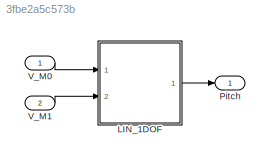
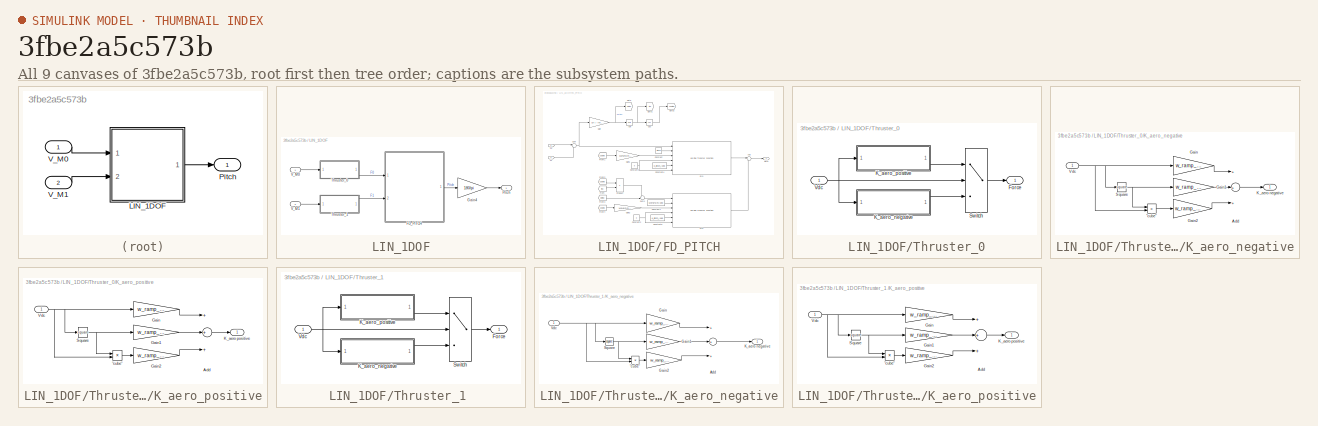
[diagram: thumbnail index - all 9 canvases of the model, root first then tree order]
MODEL slx_3fbe2a5c573b
KIND model
CONFIG AbsTol = auto
CONFIG EnableMultiTasking = off
CONFIG FixedStep = auto
CONFIG InitFcn = load("parameters.mat")\nload("Coefficients.mat") 
CONFIG MaxStep = auto
CONFIG MinStep = auto
CONFIG RelTol = 1e-3
CONFIG SampleTimeConstraint = Unconstrained
CONFIG Solver = VariableStepAuto
CONFIG SolverName = VariableStepAuto
CONFIG StartTime = 0.0
CONFIG StopTime = 600
BLOCK [SubSystem] LIN_1DOF
  Ports = [2, 1]
  RequestExecContextInheritance = off
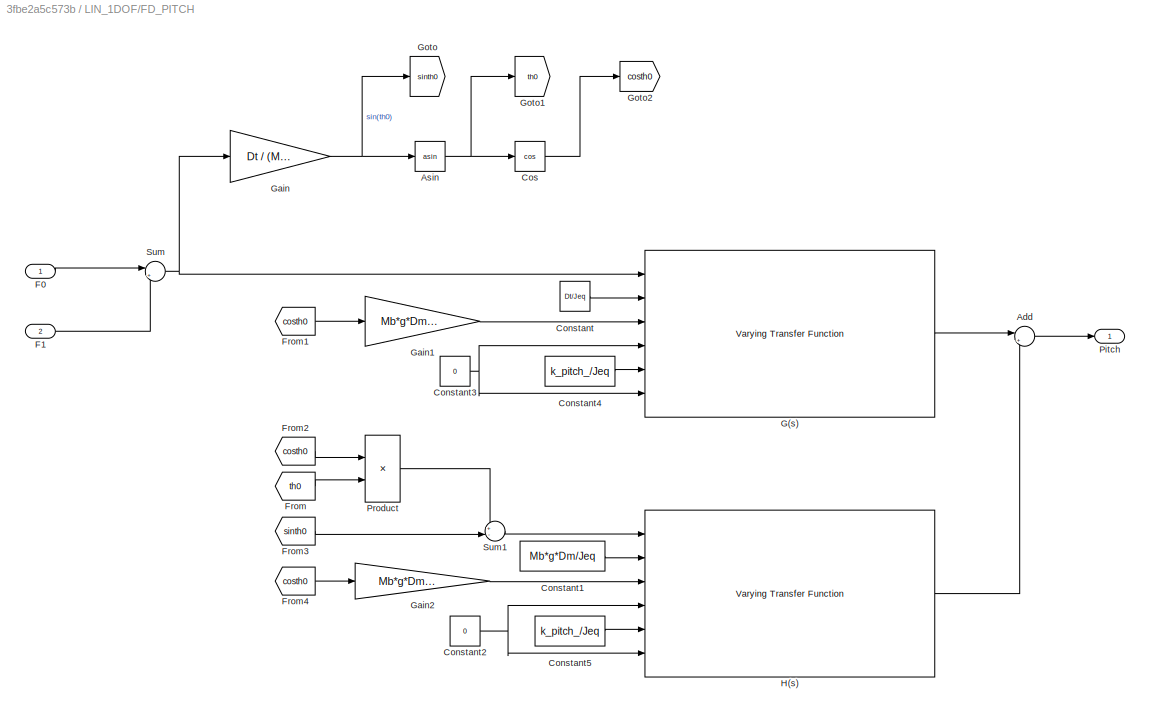
BLOCK [SubSystem] LIN_1DOF/FD_PITCH
  Ports = [2, 1]
  RequestExecContextInheritance = off
BLOCK [Sum] LIN_1DOF/FD_PITCH/Add
  IconShape = round
  InputSameDT = off
  Inputs = |++
  OutDataTypeStr = Inherit: Inherit via internal rule
  Ports = [2, 1]
  SaturateOnIntegerOverflow = off
BLOCK [Trigonometry] LIN_1DOF/FD_PITCH/Asin
  Operator = asin
  Ports = [1, 1]
BLOCK [Constant] LIN_1DOF/FD_PITCH/Constant
  Value = Dt/Jeq
BLOCK [Constant] LIN_1DOF/FD_PITCH/Constant1
  Value = Mb*g*Dm/Jeq
BLOCK [Constant] LIN_1DOF/FD_PITCH/Constant2
  Value = 0
BLOCK [Constant] LIN_1DOF/FD_PITCH/Constant3
  Value = 0
BLOCK [Constant] LIN_1DOF/FD_PITCH/Constant4
  Value = k_pitch_/Jeq
BLOCK [Constant] LIN_1DOF/FD_PITCH/Constant5
  Value = k_pitch_/Jeq
BLOCK [Trigonometry] LIN_1DOF/FD_PITCH/Cos
  Operator = cos
  Ports = [1, 1]
BLOCK [Inport] LIN_1DOF/FD_PITCH/F0
  IconDisplay = Port number
BLOCK [Inport] LIN_1DOF/FD_PITCH/F1
  IconDisplay = Port number
  Port = 2
BLOCK [From] LIN_1DOF/FD_PITCH/From
  GotoTag = th0
BLOCK [From] LIN_1DOF/FD_PITCH/From1
  GotoTag = costh0
BLOCK [From] LIN_1DOF/FD_PITCH/From2
  GotoTag = costh0
BLOCK [From] LIN_1DOF/FD_PITCH/From3
  GotoTag = sinth0
BLOCK [From] LIN_1DOF/FD_PITCH/From4
  GotoTag = costh0
BLOCK [Reference] LIN_1DOF/FD_PITCH/G(s)  REF=cstblocks/Linear Parameter Varying/Varying Transfer Function
  Ports = [6, 1]
  SourceBlock = cstblocks/Linear Parameter Varying/Varying Transfer Function
  SourceProductBaseCode = CT
  SourceProductName = Control System Toolbox
  SourceType = Varying Transfer Function
BLOCK [Gain] LIN_1DOF/FD_PITCH/Gain
  Gain = Dt / (Mb*g*Dm)
  OutDataTypeStr = Inherit: Inherit via internal rule
  ParamDataTypeStr = Inherit: Inherit via internal rule
  SaturateOnIntegerOverflow = off
BLOCK [Gain] LIN_1DOF/FD_PITCH/Gain1
  Gain = Mb*g*Dm/Jeq
  OutDataTypeStr = Inherit: Inherit via internal rule
  ParamDataTypeStr = Inherit: Inherit via internal rule
  SaturateOnIntegerOverflow = off
BLOCK [Gain] LIN_1DOF/FD_PITCH/Gain2
  Gain = Mb*g*Dm/Jp
  OutDataTypeStr = Inherit: Inherit via internal rule
  ParamDataTypeStr = Inherit: Inherit via internal rule
  SaturateOnIntegerOverflow = off
BLOCK [Goto] LIN_1DOF/FD_PITCH/Goto
  GotoTag = sinth0
BLOCK [Goto] LIN_1DOF/FD_PITCH/Goto1
  GotoTag = th0
BLOCK [Goto] LIN_1DOF/FD_PITCH/Goto2
  GotoTag = costh0
BLOCK [Reference] LIN_1DOF/FD_PITCH/H(s)  REF=cstblocks/Linear Parameter Varying/Varying Transfer Function
  Ports = [6, 1]
  SourceBlock = cstblocks/Linear Parameter Varying/Varying Transfer Function
  SourceProductBaseCode = CT
  SourceProductName = Control System Toolbox
  SourceType = Varying Transfer Function
BLOCK [Outport] LIN_1DOF/FD_PITCH/Pitch
  IconDisplay = Port number
BLOCK [Product] LIN_1DOF/FD_PITCH/Product
  InputSameDT = off
  OutDataTypeStr = Inherit: Inherit via internal rule
  Ports = [2, 1]
  RndMeth = Floor
  SaturateOnIntegerOverflow = off
BLOCK [Sum] LIN_1DOF/FD_PITCH/Sum
  IconShape = round
  InputSameDT = off
  Inputs = |+-
  OutDataTypeStr = Inherit: Inherit via internal rule
  Ports = [2, 1]
  SaturateOnIntegerOverflow = off
BLOCK [Sum] LIN_1DOF/FD_PITCH/Sum1
  IconShape = round
  InputSameDT = off
  Inputs = +-|
  OutDataTypeStr = Inherit: Inherit via internal rule
  Ports = [2, 1]
  SaturateOnIntegerOverflow = off
BLOCK [Gain] LIN_1DOF/Gain4
  Gain = 180/pi
  OutDataTypeStr = Inherit: Inherit via internal rule
  ParamDataTypeStr = Inherit: Inherit via internal rule
  SaturateOnIntegerOverflow = off
BLOCK [Outport] LIN_1DOF/Pitch
  IconDisplay = Port number
BLOCK [SubSystem] LIN_1DOF/Thruster_0
  Ports = [1, 1]
  RequestExecContextInheritance = off
BLOCK [Outport] LIN_1DOF/Thruster_0/Force
  IconDisplay = Port number
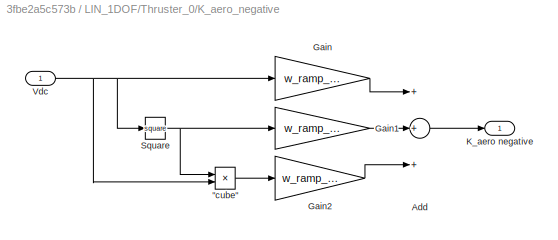
BLOCK [SubSystem] LIN_1DOF/Thruster_0/K_aero_negative
  Ports = [1, 1]
  RequestExecContextInheritance = off
BLOCK [Product] LIN_1DOF/Thruster_0/K_aero_negative/"cube"
  InputSameDT = off
  Inputs = **
  OutDataTypeStr = Inherit: Inherit via internal rule
  Ports = [2, 1]
  RndMeth = Floor
  SaturateOnIntegerOverflow = off
BLOCK [Sum] LIN_1DOF/Thruster_0/K_aero_negative/Add
  InputSameDT = off
  Inputs = +++
  OutDataTypeStr = Inherit: Inherit via internal rule
  Ports = [3, 1]
  SaturateOnIntegerOverflow = off
BLOCK [Gain] LIN_1DOF/Thruster_0/K_aero_negative/Gain
  Gain = w_ramp_0N(3)
  OutDataTypeStr = Inherit: Inherit via internal rule
  ParamDataTypeStr = Inherit: Inherit via internal rule
  SaturateOnIntegerOverflow = off
BLOCK [Gain] LIN_1DOF/Thruster_0/K_aero_negative/Gain1
  Gain = w_ramp_0N(2)
  OutDataTypeStr = Inherit: Inherit via internal rule
  ParamDataTypeStr = Inherit: Inherit via internal rule
  SaturateOnIntegerOverflow = off
BLOCK [Gain] LIN_1DOF/Thruster_0/K_aero_negative/Gain2
  Gain = w_ramp_0N(1)
  OutDataTypeStr = Inherit: Inherit via internal rule
  ParamDataTypeStr = Inherit: Inherit via internal rule
  SaturateOnIntegerOverflow = off
BLOCK [Outport] LIN_1DOF/Thruster_0/K_aero_negative/K_aero negative
  IconDisplay = Port number
BLOCK [Math] LIN_1DOF/Thruster_0/K_aero_negative/Square
  Operator = square
  Ports = [1, 1]
  SignedPower = off
BLOCK [Inport] LIN_1DOF/Thruster_0/K_aero_negative/Vdc
  IconDisplay = Port number
BLOCK [SubSystem] LIN_1DOF/Thruster_0/K_aero_positive
  Ports = [1, 1]
  RequestExecContextInheritance = off
BLOCK [Product] LIN_1DOF/Thruster_0/K_aero_positive/"cube"
  InputSameDT = off
  Inputs = **
  OutDataTypeStr = Inherit: Inherit via internal rule
  Ports = [2, 1]
  RndMeth = Floor
  SaturateOnIntegerOverflow = off
BLOCK [Sum] LIN_1DOF/Thruster_0/K_aero_positive/Add
  InputSameDT = off
  Inputs = +++
  OutDataTypeStr = Inherit: Inherit via internal rule
  Ports = [3, 1]
  SaturateOnIntegerOverflow = off
BLOCK [Gain] LIN_1DOF/Thruster_0/K_aero_positive/Gain
  Gain = w_ramp_0P(3)
  OutDataTypeStr = Inherit: Inherit via internal rule
  ParamDataTypeStr = Inherit: Inherit via internal rule
  SaturateOnIntegerOverflow = off
BLOCK [Gain] LIN_1DOF/Thruster_0/K_aero_positive/Gain1
  Gain = w_ramp_0P(2)
  OutDataTypeStr = Inherit: Inherit via internal rule
  ParamDataTypeStr = Inherit: Inherit via internal rule
  SaturateOnIntegerOverflow = off
BLOCK [Gain] LIN_1DOF/Thruster_0/K_aero_positive/Gain2
  Gain = w_ramp_0P(1)
  OutDataTypeStr = Inherit: Inherit via internal rule
  ParamDataTypeStr = Inherit: Inherit via internal rule
  SaturateOnIntegerOverflow = off
BLOCK [Outport] LIN_1DOF/Thruster_0/K_aero_positive/K_aero positive
  IconDisplay = Port number
BLOCK [Math] LIN_1DOF/Thruster_0/K_aero_positive/Square
  Operator = square
  Ports = [1, 1]
  SignedPower = off
BLOCK [Inport] LIN_1DOF/Thruster_0/K_aero_positive/Vdc
  IconDisplay = Port number
BLOCK [Switch] LIN_1DOF/Thruster_0/Switch
  Criteria = u2 > Threshold
  InputSameDT = off
  SaturateOnIntegerOverflow = off
BLOCK [Inport] LIN_1DOF/Thruster_0/Vdc
  IconDisplay = Port number
BLOCK [SubSystem] LIN_1DOF/Thruster_1 
  Ports = [1, 1]
  RequestExecContextInheritance = off
BLOCK [Outport] LIN_1DOF/Thruster_1 /Force
  IconDisplay = Port number
BLOCK [SubSystem] LIN_1DOF/Thruster_1 /K_aero_negative
  Ports = [1, 1]
  RequestExecContextInheritance = off
BLOCK [Product] LIN_1DOF/Thruster_1 /K_aero_negative/"cube"
  InputSameDT = off
  Inputs = **
  OutDataTypeStr = Inherit: Inherit via internal rule
  Ports = [2, 1]
  RndMeth = Floor
  SaturateOnIntegerOverflow = off
BLOCK [Sum] LIN_1DOF/Thruster_1 /K_aero_negative/Add
  InputSameDT = off
  Inputs = +++
  OutDataTypeStr = Inherit: Inherit via internal rule
  Ports = [3, 1]
  SaturateOnIntegerOverflow = off
BLOCK [Gain] LIN_1DOF/Thruster_1 /K_aero_negative/Gain
  Gain = w_ramp_1N(3)
  OutDataTypeStr = Inherit: Inherit via internal rule
  ParamDataTypeStr = Inherit: Inherit via internal rule
  SaturateOnIntegerOverflow = off
BLOCK [Gain] LIN_1DOF/Thruster_1 /K_aero_negative/Gain1
  Gain = w_ramp_1N(2)
  OutDataTypeStr = Inherit: Inherit via internal rule
  ParamDataTypeStr = Inherit: Inherit via internal rule
  SaturateOnIntegerOverflow = off
BLOCK [Gain] LIN_1DOF/Thruster_1 /K_aero_negative/Gain2
  Gain = w_ramp_1N(1)
  OutDataTypeStr = Inherit: Inherit via internal rule
  ParamDataTypeStr = Inherit: Inherit via internal rule
  SaturateOnIntegerOverflow = off
BLOCK [Outport] LIN_1DOF/Thruster_1 /K_aero_negative/K_aero negative
  IconDisplay = Port number
BLOCK [Math] LIN_1DOF/Thruster_1 /K_aero_negative/Square
  Operator = square
  Ports = [1, 1]
  SignedPower = off
BLOCK [Inport] LIN_1DOF/Thruster_1 /K_aero_negative/Vdc
  IconDisplay = Port number
BLOCK [SubSystem] LIN_1DOF/Thruster_1 /K_aero_positive
  Ports = [1, 1]
  RequestExecContextInheritance = off
BLOCK [Product] LIN_1DOF/Thruster_1 /K_aero_positive/"cube"
  InputSameDT = off
  Inputs = **
  OutDataTypeStr = Inherit: Inherit via internal rule
  Ports = [2, 1]
  RndMeth = Floor
  SaturateOnIntegerOverflow = off
BLOCK [Sum] LIN_1DOF/Thruster_1 /K_aero_positive/Add
  InputSameDT = off
  Inputs = +++
  OutDataTypeStr = Inherit: Inherit via internal rule
  Ports = [3, 1]
  SaturateOnIntegerOverflow = off
BLOCK [Gain] LIN_1DOF/Thruster_1 /K_aero_positive/Gain
  Gain = w_ramp_1P(3)
  OutDataTypeStr = Inherit: Inherit via internal rule
  ParamDataTypeStr = Inherit: Inherit via internal rule
  SaturateOnIntegerOverflow = off
BLOCK [Gain] LIN_1DOF/Thruster_1 /K_aero_positive/Gain1
  Gain = w_ramp_1P(2)
  OutDataTypeStr = Inherit: Inherit via internal rule
  ParamDataTypeStr = Inherit: Inherit via internal rule
  SaturateOnIntegerOverflow = off
BLOCK [Gain] LIN_1DOF/Thruster_1 /K_aero_positive/Gain2
  Gain = w_ramp_1P(1)
  OutDataTypeStr = Inherit: Inherit via internal rule
  ParamDataTypeStr = Inherit: Inherit via internal rule
  SaturateOnIntegerOverflow = off
BLOCK [Outport] LIN_1DOF/Thruster_1 /K_aero_positive/K_aero positive
  IconDisplay = Port number
BLOCK [Math] LIN_1DOF/Thruster_1 /K_aero_positive/Square
  Operator = square
  Ports = [1, 1]
  SignedPower = off
BLOCK [Inport] LIN_1DOF/Thruster_1 /K_aero_positive/Vdc
  IconDisplay = Port number
BLOCK [Switch] LIN_1DOF/Thruster_1 /Switch
  Criteria = u2 > Threshold
  InputSameDT = off
  SaturateOnIntegerOverflow = off
BLOCK [Inport] LIN_1DOF/Thruster_1 /Vdc
  IconDisplay = Port number
BLOCK [Inport] LIN_1DOF/V_M0 
  IconDisplay = Port number
BLOCK [Inport] LIN_1DOF/V_M1
  IconDisplay = Port number
  Port = 2
BLOCK [Outport] Pitch
  IconDisplay = Port number
BLOCK [Inport] V_M0 
  IconDisplay = Port number
BLOCK [Inport] V_M1
  IconDisplay = Port number
  Port = 2
LINE LIN_1DOF/FD_PITCH/Add:1 -> LIN_1DOF/FD_PITCH/Pitch:1
NET LIN_1DOF/FD_PITCH/Asin:1 -> LIN_1DOF/FD_PITCH/Cos:1, LIN_1DOF/FD_PITCH/Goto1:1
LINE LIN_1DOF/FD_PITCH/Constant1:1 -> LIN_1DOF/FD_PITCH/H(s):2
NET LIN_1DOF/FD_PITCH/Constant2:1 -> LIN_1DOF/FD_PITCH/H(s):4, LIN_1DOF/FD_PITCH/H(s):6
NET LIN_1DOF/FD_PITCH/Constant3:1 -> LIN_1DOF/FD_PITCH/G(s):4, LIN_1DOF/FD_PITCH/G(s):6
LINE LIN_1DOF/FD_PITCH/Constant4:1 -> LIN_1DOF/FD_PITCH/G(s):5
LINE LIN_1DOF/FD_PITCH/Constant5:1 -> LIN_1DOF/FD_PITCH/H(s):5
LINE LIN_1DOF/FD_PITCH/Constant:1 -> LIN_1DOF/FD_PITCH/G(s):2
LINE LIN_1DOF/FD_PITCH/Cos:1 -> LIN_1DOF/FD_PITCH/Goto2:1
LINE LIN_1DOF/FD_PITCH/F0:1 -> LIN_1DOF/FD_PITCH/Sum:1
LINE LIN_1DOF/FD_PITCH/F1:1 -> LIN_1DOF/FD_PITCH/Sum:2
LINE LIN_1DOF/FD_PITCH/From1:1 -> LIN_1DOF/FD_PITCH/Gain1:1
LINE LIN_1DOF/FD_PITCH/From2:1 -> LIN_1DOF/FD_PITCH/Product:1
LINE LIN_1DOF/FD_PITCH/From3:1 -> LIN_1DOF/FD_PITCH/Sum1:2
LINE LIN_1DOF/FD_PITCH/From4:1 -> LIN_1DOF/FD_PITCH/Gain2:1
LINE LIN_1DOF/FD_PITCH/From:1 -> LIN_1DOF/FD_PITCH/Product:2
LINE LIN_1DOF/FD_PITCH/G(s):1 -> LIN_1DOF/FD_PITCH/Add:1
LINE LIN_1DOF/FD_PITCH/Gain1:1 -> LIN_1DOF/FD_PITCH/G(s):3
LINE LIN_1DOF/FD_PITCH/Gain2:1 -> LIN_1DOF/FD_PITCH/H(s):3
NET LIN_1DOF/FD_PITCH/Gain:1 -> LIN_1DOF/FD_PITCH/Asin:1, LIN_1DOF/FD_PITCH/Goto:1
LINE LIN_1DOF/FD_PITCH/H(s):1 -> LIN_1DOF/FD_PITCH/Add:2
LINE LIN_1DOF/FD_PITCH/Product:1 -> LIN_1DOF/FD_PITCH/Sum1:1
LINE LIN_1DOF/FD_PITCH/Sum1:1 -> LIN_1DOF/FD_PITCH/H(s):1
NET LIN_1DOF/FD_PITCH/Sum:1 -> LIN_1DOF/FD_PITCH/G(s):1, LIN_1DOF/FD_PITCH/Gain:1
LINE LIN_1DOF/FD_PITCH:1 -> LIN_1DOF/Gain4:1
LINE LIN_1DOF/Gain4:1 -> LIN_1DOF/Pitch:1
LINE LIN_1DOF/Thruster_0/K_aero_negative/"cube":1 -> LIN_1DOF/Thruster_0/K_aero_negative/Gain2:1
LINE LIN_1DOF/Thruster_0/K_aero_negative/Add:1 -> LIN_1DOF/Thruster_0/K_aero_negative/K_aero negative:1
LINE LIN_1DOF/Thruster_0/K_aero_negative/Gain1:1 -> LIN_1DOF/Thruster_0/K_aero_negative/Add:2
LINE LIN_1DOF/Thruster_0/K_aero_negative/Gain2:1 -> LIN_1DOF/Thruster_0/K_aero_negative/Add:3
LINE LIN_1DOF/Thruster_0/K_aero_negative/Gain:1 -> LIN_1DOF/Thruster_0/K_aero_negative/Add:1
NET LIN_1DOF/Thruster_0/K_aero_negative/Square:1 -> LIN_1DOF/Thruster_0/K_aero_negative/"cube":1, LIN_1DOF/Thruster_0/K_aero_negative/Gain1:1
NET LIN_1DOF/Thruster_0/K_aero_negative/Vdc:1 -> LIN_1DOF/Thruster_0/K_aero_negative/"cube":2, LIN_1DOF/Thruster_0/K_aero_negative/Gain:1, LIN_1DOF/Thruster_0/K_aero_negative/Square:1
LINE LIN_1DOF/Thruster_0/K_aero_negative:1 -> LIN_1DOF/Thruster_0/Switch:3
LINE LIN_1DOF/Thruster_0/K_aero_positive/"cube":1 -> LIN_1DOF/Thruster_0/K_aero_positive/Gain2:1
LINE LIN_1DOF/Thruster_0/K_aero_positive/Add:1 -> LIN_1DOF/Thruster_0/K_aero_positive/K_aero positive:1
LINE LIN_1DOF/Thruster_0/K_aero_positive/Gain1:1 -> LIN_1DOF/Thruster_0/K_aero_positive/Add:2
LINE LIN_1DOF/Thruster_0/K_aero_positive/Gain2:1 -> LIN_1DOF/Thruster_0/K_aero_positive/Add:3
LINE LIN_1DOF/Thruster_0/K_aero_positive/Gain:1 -> LIN_1DOF/Thruster_0/K_aero_positive/Add:1
NET LIN_1DOF/Thruster_0/K_aero_positive/Square:1 -> LIN_1DOF/Thruster_0/K_aero_positive/"cube":1, LIN_1DOF/Thruster_0/K_aero_positive/Gain1:1
NET LIN_1DOF/Thruster_0/K_aero_positive/Vdc:1 -> LIN_1DOF/Thruster_0/K_aero_positive/"cube":2, LIN_1DOF/Thruster_0/K_aero_positive/Gain:1, LIN_1DOF/Thruster_0/K_aero_positive/Square:1
LINE LIN_1DOF/Thruster_0/K_aero_positive:1 -> LIN_1DOF/Thruster_0/Switch:1
LINE LIN_1DOF/Thruster_0/Switch:1 -> LIN_1DOF/Thruster_0/Force:1
NET LIN_1DOF/Thruster_0/Vdc:1 -> LIN_1DOF/Thruster_0/K_aero_negative:1, LIN_1DOF/Thruster_0/K_aero_positive:1, LIN_1DOF/Thruster_0/Switch:2
LINE LIN_1DOF/Thruster_0:1 -> LIN_1DOF/FD_PITCH:1
LINE LIN_1DOF/Thruster_1 /K_aero_negative/"cube":1 -> LIN_1DOF/Thruster_1 /K_aero_negative/Gain2:1
LINE LIN_1DOF/Thruster_1 /K_aero_negative/Add:1 -> LIN_1DOF/Thruster_1 /K_aero_negative/K_aero negative:1
LINE LIN_1DOF/Thruster_1 /K_aero_negative/Gain1:1 -> LIN_1DOF/Thruster_1 /K_aero_negative/Add:2
LINE LIN_1DOF/Thruster_1 /K_aero_negative/Gain2:1 -> LIN_1DOF/Thruster_1 /K_aero_negative/Add:3
LINE LIN_1DOF/Thruster_1 /K_aero_negative/Gain:1 -> LIN_1DOF/Thruster_1 /K_aero_negative/Add:1
NET LIN_1DOF/Thruster_1 /K_aero_negative/Square:1 -> LIN_1DOF/Thruster_1 /K_aero_negative/"cube":1, LIN_1DOF/Thruster_1 /K_aero_negative/Gain1:1
NET LIN_1DOF/Thruster_1 /K_aero_negative/Vdc:1 -> LIN_1DOF/Thruster_1 /K_aero_negative/"cube":2, LIN_1DOF/Thruster_1 /K_aero_negative/Gain:1, LIN_1DOF/Thruster_1 /K_aero_negative/Square:1
LINE LIN_1DOF/Thruster_1 /K_aero_negative:1 -> LIN_1DOF/Thruster_1 /Switch:3
LINE LIN_1DOF/Thruster_1 /K_aero_positive/"cube":1 -> LIN_1DOF/Thruster_1 /K_aero_positive/Gain2:1
LINE LIN_1DOF/Thruster_1 /K_aero_positive/Add:1 -> LIN_1DOF/Thruster_1 /K_aero_positive/K_aero positive:1
LINE LIN_1DOF/Thruster_1 /K_aero_positive/Gain1:1 -> LIN_1DOF/Thruster_1 /K_aero_positive/Add:2
LINE LIN_1DOF/Thruster_1 /K_aero_positive/Gain2:1 -> LIN_1DOF/Thruster_1 /K_aero_positive/Add:3
LINE LIN_1DOF/Thruster_1 /K_aero_positive/Gain:1 -> LIN_1DOF/Thruster_1 /K_aero_positive/Add:1
NET LIN_1DOF/Thruster_1 /K_aero_positive/Square:1 -> LIN_1DOF/Thruster_1 /K_aero_positive/"cube":1, LIN_1DOF/Thruster_1 /K_aero_positive/Gain1:1
NET LIN_1DOF/Thruster_1 /K_aero_positive/Vdc:1 -> LIN_1DOF/Thruster_1 /K_aero_positive/"cube":2, LIN_1DOF/Thruster_1 /K_aero_positive/Gain:1, LIN_1DOF/Thruster_1 /K_aero_positive/Square:1
LINE LIN_1DOF/Thruster_1 /K_aero_positive:1 -> LIN_1DOF/Thruster_1 /Switch:1
LINE LIN_1DOF/Thruster_1 /Switch:1 -> LIN_1DOF/Thruster_1 /Force:1
NET LIN_1DOF/Thruster_1 /Vdc:1 -> LIN_1DOF/Thruster_1 /K_aero_negative:1, LIN_1DOF/Thruster_1 /K_aero_positive:1, LIN_1DOF/Thruster_1 /Switch:2
LINE LIN_1DOF/Thruster_1 :1 -> LIN_1DOF/FD_PITCH:2
LINE LIN_1DOF/V_M0 :1 -> LIN_1DOF/Thruster_0:1
LINE LIN_1DOF/V_M1:1 -> LIN_1DOF/Thruster_1 :1
LINE LIN_1DOF:1 -> Pitch:1
LINE V_M0 :1 -> LIN_1DOF:1
LINE V_M1:1 -> LIN_1DOF:2
note: NET lines group one-source signal fan-out (src -> all destinations, sorted); 1:1 wires keep LINE
